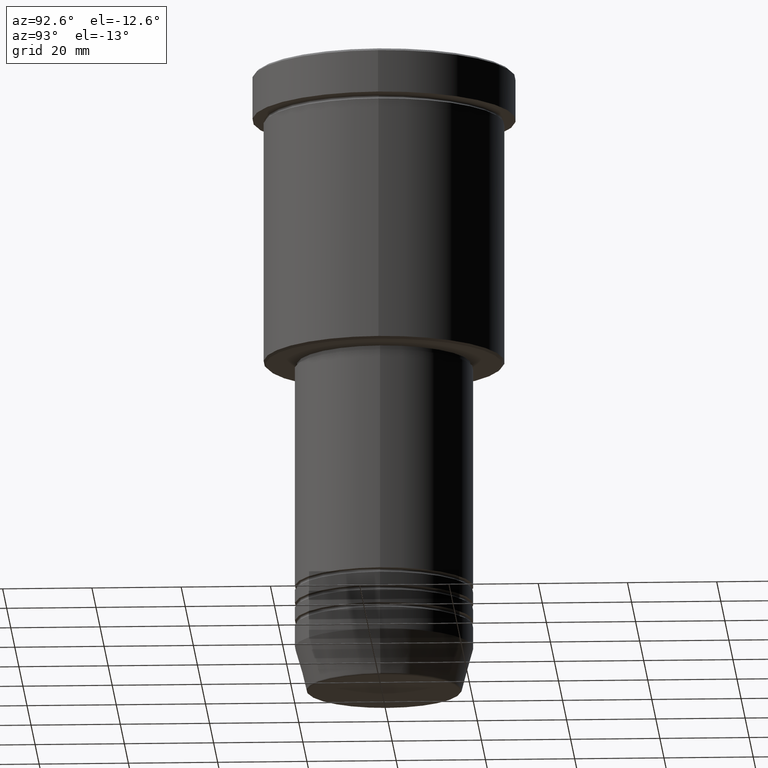
[diagram: clean part render]
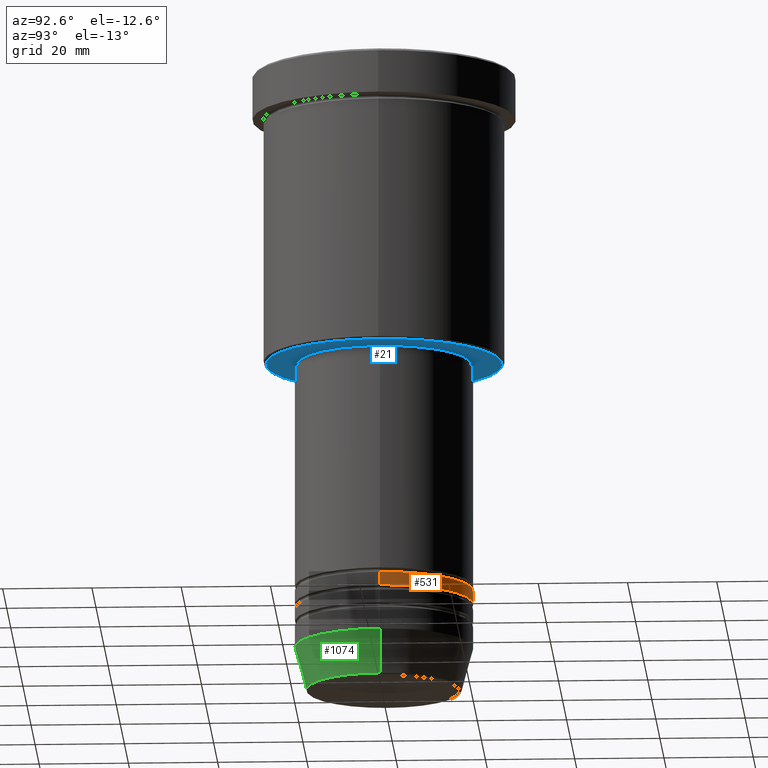
[diagram: same view with three faces highlighted in distinct colors, each labeled with its STEP entity id]
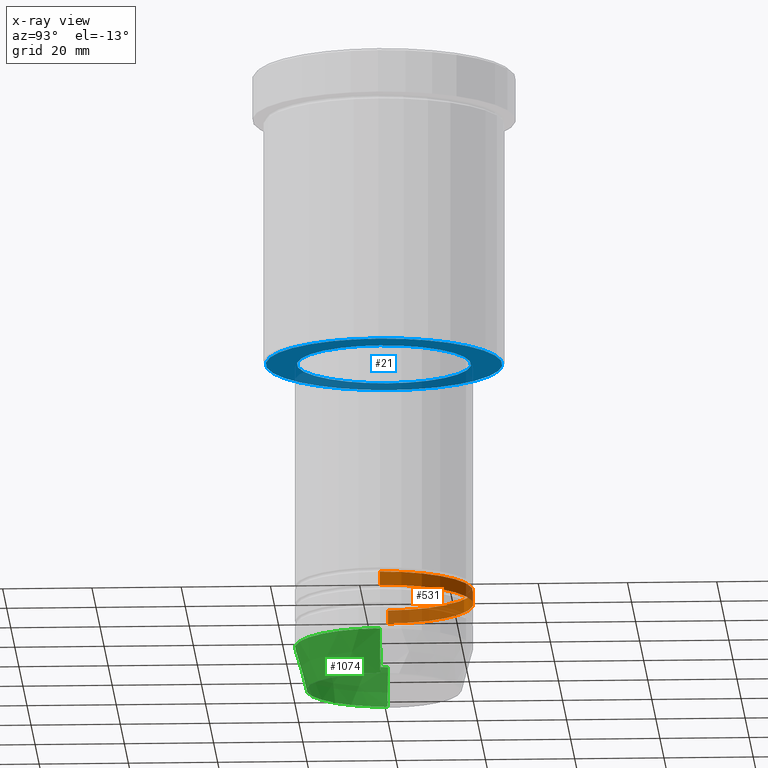
[diagram: x-ray of the same camera — body ghosted, the three highlighted faces saturated]
A machine part, auxiliary view with three faces highlighted in distinct colors.
The next image is the same camera in x-ray (body ghosted, the three faces saturated) — at least one of them is partly hidden behind the body in this view.
Their STEP definitions:

[orange] entity #531 — the highlighted cylindrical surface (partial cylindrical patch) has radius 20 mm, axis along (-0, -0, 1).
#26 = VECTOR ( 'NONE', #252, 1000.000000000000000 ) ;
#52 = DIRECTION ( 'NONE',  ( 1.000000000000000000, 0.000000000000000000, 0.000000000000000000 ) ) ;
#137 = CARTESIAN_POINT ( 'NONE',  ( 20.00000000000000355, 0.000000000000000000, 0.000000000000000000 ) ) ;
#144 = CARTESIAN_POINT ( 'NONE',  ( 0.000000000000000000, 0.000000000000000000, 0.000000000000000000 ) ) ;
#172 = DIRECTION ( 'NONE',  ( -0.000000000000000000, -0.000000000000000000, 1.000000000000000000 ) ) ;
#224 = DIRECTION ( 'NONE',  ( 1.000000000000000000, 0.000000000000000000, 0.000000000000000000 ) ) ;
#232 = CYLINDRICAL_SURFACE ( 'NONE', #792, 20.00000000000000355 ) ;
#236 = VERTEX_POINT ( 'NONE', #558 ) ;
#247 = DIRECTION ( 'NONE',  ( -0.000000000000000000, -0.000000000000000000, 1.000000000000000000 ) ) ;
#252 = DIRECTION ( 'NONE',  ( -0.000000000000000000, -0.000000000000000000, 1.000000000000000000 ) ) ;
#296 = VECTOR ( 'NONE', #172, 1000.000000000000000 ) ;
#327 = AXIS2_PLACEMENT_3D ( 'NONE', #948, #1027, #224 ) ;
#330 = FACE_OUTER_BOUND ( 'NONE', #960, .T. ) ;
#358 = CIRCLE ( 'NONE', #1019, 20.00000000000000355 ) ;
#368 = VERTEX_POINT ( 'NONE', #1121 ) ;
#376 = DIRECTION ( 'NONE',  ( 1.000000000000000000, 0.000000000000000000, 0.000000000000000000 ) ) ;
#403 = ORIENTED_EDGE ( 'NONE', *, *, #572, .T. ) ;
#443 = LINE ( 'NONE', #1073, #296 ) ;
#462 = CARTESIAN_POINT ( 'NONE',  ( 0.000000000000000000, 0.000000000000000000, -120.9999999999999147 ) ) ;
#531 = ADVANCED_FACE ( 'NONE', ( #330 ), #232, .T. ) ;
#538 = ORIENTED_EDGE ( 'NONE', *, *, #815, .F. ) ;
#558 = CARTESIAN_POINT ( 'NONE',  ( -20.00000000000000355, 2.449293598294706907E-15, -120.9999999999999147 ) ) ;
#572 = EDGE_CURVE ( 'NONE', #236, #1056, #443, .T. ) ;
#599 = CARTESIAN_POINT ( 'NONE',  ( 20.00000000000000355, 0.000000000000000000, -120.9999999999999147 ) ) ;
#609 = LINE ( 'NONE', #137, #26 ) ;
#792 = AXIS2_PLACEMENT_3D ( 'NONE', #144, #247, #52 ) ;
#815 = EDGE_CURVE ( 'NONE', #368, #1056, #907, .T. ) ;
#822 = DIRECTION ( 'NONE',  ( -0.000000000000000000, -0.000000000000000000, 1.000000000000000000 ) ) ;
#877 = VERTEX_POINT ( 'NONE', #599 ) ;
#907 = CIRCLE ( 'NONE', #327, 20.00000000000000000 ) ;
#948 = CARTESIAN_POINT ( 'NONE',  ( 0.000000000000000000, 0.000000000000000000, -117.9999999999999005 ) ) ;
#960 = EDGE_LOOP ( 'NONE', ( #1149, #403, #538, #1015 ) ) ;
#966 = EDGE_CURVE ( 'NONE', #877, #368, #609, .T. ) ;
#1015 = ORIENTED_EDGE ( 'NONE', *, *, #966, .F. ) ;
#1019 = AXIS2_PLACEMENT_3D ( 'NONE', #462, #822, #376 ) ;
#1027 = DIRECTION ( 'NONE',  ( -0.000000000000000000, -0.000000000000000000, 1.000000000000000000 ) ) ;
#1056 = VERTEX_POINT ( 'NONE', #1180 ) ;
#1073 = CARTESIAN_POINT ( 'NONE',  ( -20.00000000000000355, 2.449293598294706907E-15, 0.000000000000000000 ) ) ;
#1105 = EDGE_CURVE ( 'NONE', #877, #236, #358, .T. ) ;
#1121 = CARTESIAN_POINT ( 'NONE',  ( 20.00000000000000000, 0.000000000000000000, -117.9999999999999005 ) ) ;
#1149 = ORIENTED_EDGE ( 'NONE', *, *, #1105, .T. ) ;
#1180 = CARTESIAN_POINT ( 'NONE',  ( -20.00000000000000000, 2.449293598294706513E-15, -117.9999999999999005 ) ) ;

[blue] entity #21 — the highlighted planar face has unit normal (0, 0, -1).
#6 = ORIENTED_EDGE ( 'NONE', *, *, #365, .T. ) ;
#21 = ADVANCED_FACE ( 'NONE', ( #1011, #286 ), #653, .T. ) ;
#41 = DIRECTION ( 'NONE',  ( -0.000000000000000000, -0.000000000000000000, 1.000000000000000000 ) ) ;
#43 = VERTEX_POINT ( 'NONE', #1092 ) ;
#106 = CARTESIAN_POINT ( 'NONE',  ( 0.000000000000000000, 27.00000000000000355, -66.00000000000000000 ) ) ;
#113 = DIRECTION ( 'NONE',  ( 0.000000000000000000, 0.000000000000000000, -1.000000000000000000 ) ) ;
#189 = DIRECTION ( 'NONE',  ( 0.000000000000000000, 0.000000000000000000, -1.000000000000000000 ) ) ;
#221 = DIRECTION ( 'NONE',  ( -1.000000000000000000, 0.000000000000000000, 0.000000000000000000 ) ) ;
#227 = CIRCLE ( 'NONE', #495, 19.50000000000000000 ) ;
#244 = AXIS2_PLACEMENT_3D ( 'NONE', #630, #189, #466 ) ;
#270 = VERTEX_POINT ( 'NONE', #283 ) ;
#283 = CARTESIAN_POINT ( 'NONE',  ( -19.50000000000000000, 2.388061258337338939E-15, -66.00000000000000000 ) ) ;
#286 = FACE_BOUND ( 'NONE', #1083, .T. ) ;
#365 = EDGE_CURVE ( 'NONE', #43, #1112, #987, .T. ) ;
#413 = CARTESIAN_POINT ( 'NONE',  ( 19.50000000000000000, 0.000000000000000000, -66.00000000000000000 ) ) ;
#466 = DIRECTION ( 'NONE',  ( -1.000000000000000000, 0.000000000000000000, 0.000000000000000000 ) ) ;
#482 = CARTESIAN_POINT ( 'NONE',  ( 0.000000000000000000, 0.000000000000000000, -66.00000000000000000 ) ) ;
#495 = AXIS2_PLACEMENT_3D ( 'NONE', #975, #703, #791 ) ;
#563 = DIRECTION ( 'NONE',  ( -1.000000000000000000, 0.000000000000000000, -0.000000000000000000 ) ) ;
#630 = CARTESIAN_POINT ( 'NONE',  ( 0.000000000000000000, 0.000000000000000000, -66.00000000000000000 ) ) ;
#653 = PLANE ( 'NONE',  #1145 ) ;
#661 = DIRECTION ( 'NONE',  ( 1.000000000000000000, 0.000000000000000000, 0.000000000000000000 ) ) ;
#672 = ORIENTED_EDGE ( 'NONE', *, *, #774, .T. ) ;
#703 = DIRECTION ( 'NONE',  ( -0.000000000000000000, -0.000000000000000000, 1.000000000000000000 ) ) ;
#709 = CIRCLE ( 'NONE', #870, 19.50000000000000000 ) ;
#740 = CARTESIAN_POINT ( 'NONE',  ( -26.49999999999999645, 3.275930187719169552E-15, -66.00000000000000000 ) ) ;
#757 = CIRCLE ( 'NONE', #244, 26.49999999999999645 ) ;
#774 = EDGE_CURVE ( 'NONE', #270, #781, #709, .T. ) ;
#777 = CARTESIAN_POINT ( 'NONE',  ( 0.000000000000000000, 0.000000000000000000, -66.00000000000000000 ) ) ;
#781 = VERTEX_POINT ( 'NONE', #413 ) ;
#791 = DIRECTION ( 'NONE',  ( 1.000000000000000000, 0.000000000000000000, 0.000000000000000000 ) ) ;
#870 = AXIS2_PLACEMENT_3D ( 'NONE', #777, #41, #661 ) ;
#902 = EDGE_CURVE ( 'NONE', #781, #270, #227, .T. ) ;
#928 = ORIENTED_EDGE ( 'NONE', *, *, #1110, .T. ) ;
#940 = DIRECTION ( 'NONE',  ( 0.000000000000000000, 0.000000000000000000, -1.000000000000000000 ) ) ;
#975 = CARTESIAN_POINT ( 'NONE',  ( 0.000000000000000000, 0.000000000000000000, -66.00000000000000000 ) ) ;
#987 = CIRCLE ( 'NONE', #1102, 26.49999999999999645 ) ;
#1011 = FACE_OUTER_BOUND ( 'NONE', #1131, .T. ) ;
#1026 = ORIENTED_EDGE ( 'NONE', *, *, #902, .T. ) ;
#1083 = EDGE_LOOP ( 'NONE', ( #1026, #672 ) ) ;
#1092 = CARTESIAN_POINT ( 'NONE',  ( 26.49999999999999645, 0.000000000000000000, -66.00000000000000000 ) ) ;
#1102 = AXIS2_PLACEMENT_3D ( 'NONE', #482, #940, #221 ) ;
#1110 = EDGE_CURVE ( 'NONE', #1112, #43, #757, .T. ) ;
#1112 = VERTEX_POINT ( 'NONE', #740 ) ;
#1131 = EDGE_LOOP ( 'NONE', ( #6, #928 ) ) ;
#1145 = AXIS2_PLACEMENT_3D ( 'NONE', #106, #113, #563 ) ;

[green] entity #1074 — the highlighted conical surface has half-angle 15 deg.
#64 = VERTEX_POINT ( 'NONE', #1107 ) ;
#65 = VERTEX_POINT ( 'NONE', #810 ) ;
#71 = DIRECTION ( 'NONE',  ( -0.000000000000000000, -0.000000000000000000, 1.000000000000000000 ) ) ;
#202 = VERTEX_POINT ( 'NONE', #835 ) ;
#301 = LINE ( 'NONE', #1151, #414 ) ;
#305 = EDGE_CURVE ( 'NONE', #65, #64, #437, .T. ) ;
#312 = ORIENTED_EDGE ( 'NONE', *, *, #305, .T. ) ;
#361 = DIRECTION ( 'NONE',  ( 1.000000000000000000, 0.000000000000000000, 0.000000000000000000 ) ) ;
#389 = ORIENTED_EDGE ( 'NONE', *, *, #943, .F. ) ;
#408 = EDGE_LOOP ( 'NONE', ( #860, #312, #1164, #389 ) ) ;
#414 = VECTOR ( 'NONE', #525, 1000.000000000000114 ) ;
#417 = AXIS2_PLACEMENT_3D ( 'NONE', #479, #1117, #1013 ) ;
#437 = CIRCLE ( 'NONE', #417, 17.41980749484382329 ) ;
#479 = CARTESIAN_POINT ( 'NONE',  ( 0.000000000000000000, 0.000000000000000000, -140.6294095225512706 ) ) ;
#484 = CARTESIAN_POINT ( 'NONE',  ( -20.00000000000000000, 2.449293598294706513E-15, -131.0000000000000000 ) ) ;
#487 = EDGE_CURVE ( 'NONE', #64, #202, #301, .T. ) ;
#516 = CARTESIAN_POINT ( 'NONE',  ( -20.00000000000000000, 2.449293598294706513E-15, -131.0000000000000000 ) ) ;
#525 = DIRECTION ( 'NONE',  ( 0.2588190451025211836, 0.000000000000000000, 0.9659258262890680902 ) ) ;
#545 = EDGE_CURVE ( 'NONE', #65, #782, #957, .T. ) ;
#699 = DIRECTION ( 'NONE',  ( 1.000000000000000000, 0.000000000000000000, 0.000000000000000000 ) ) ;
#707 = CARTESIAN_POINT ( 'NONE',  ( 0.000000000000000000, 0.000000000000000000, -131.0000000000000000 ) ) ;
#711 = AXIS2_PLACEMENT_3D ( 'NONE', #1006, #716, #361 ) ;
#716 = DIRECTION ( 'NONE',  ( -0.000000000000000000, -0.000000000000000000, 1.000000000000000000 ) ) ;
#732 = FACE_OUTER_BOUND ( 'NONE', #408, .T. ) ;
#782 = VERTEX_POINT ( 'NONE', #484 ) ;
#810 = CARTESIAN_POINT ( 'NONE',  ( -17.41980749484382329, 2.291302373663531915E-15, -140.6294095225512706 ) ) ;
#828 = VECTOR ( 'NONE', #897, 1000.000000000000114 ) ;
#835 = CARTESIAN_POINT ( 'NONE',  ( 20.00000000000000000, 0.000000000000000000, -131.0000000000000000 ) ) ;
#850 = CIRCLE ( 'NONE', #1154, 20.00000000000000000 ) ;
#860 = ORIENTED_EDGE ( 'NONE', *, *, #545, .F. ) ;
#874 = CONICAL_SURFACE ( 'NONE', #711, 20.00000000000000000, 0.2617993877991499074 ) ;
#897 = DIRECTION ( 'NONE',  ( -0.2588190451025211836, 3.169619151431770488E-17, 0.9659258262890680902 ) ) ;
#943 = EDGE_CURVE ( 'NONE', #782, #202, #850, .T. ) ;
#957 = LINE ( 'NONE', #516, #828 ) ;
#1006 = CARTESIAN_POINT ( 'NONE',  ( 0.000000000000000000, 0.000000000000000000, -131.0000000000000000 ) ) ;
#1013 = DIRECTION ( 'NONE',  ( 1.000000000000000000, 0.000000000000000000, 0.000000000000000000 ) ) ;
#1074 = ADVANCED_FACE ( 'NONE', ( #732 ), #874, .T. ) ;
#1107 = CARTESIAN_POINT ( 'NONE',  ( 17.41980749484382329, 0.000000000000000000, -140.6294095225512706 ) ) ;
#1117 = DIRECTION ( 'NONE',  ( -0.000000000000000000, -0.000000000000000000, 1.000000000000000000 ) ) ;
#1151 = CARTESIAN_POINT ( 'NONE',  ( 20.00000000000000000, 0.000000000000000000, -131.0000000000000000 ) ) ;
#1154 = AXIS2_PLACEMENT_3D ( 'NONE', #707, #71, #699 ) ;
#1164 = ORIENTED_EDGE ( 'NONE', *, *, #487, .T. ) ;